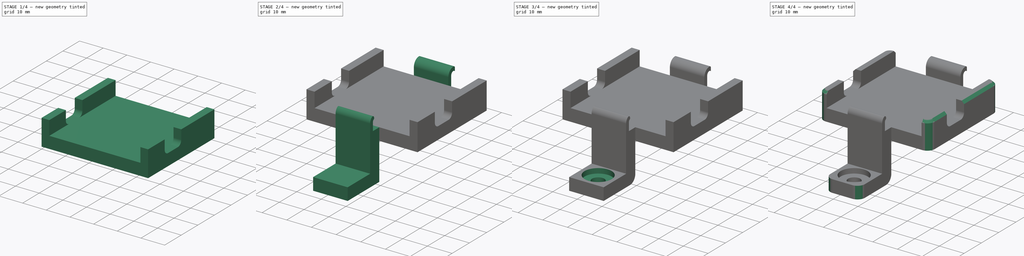
[diagram: build sequence overview — one tinted view per stage of 4, left to right]
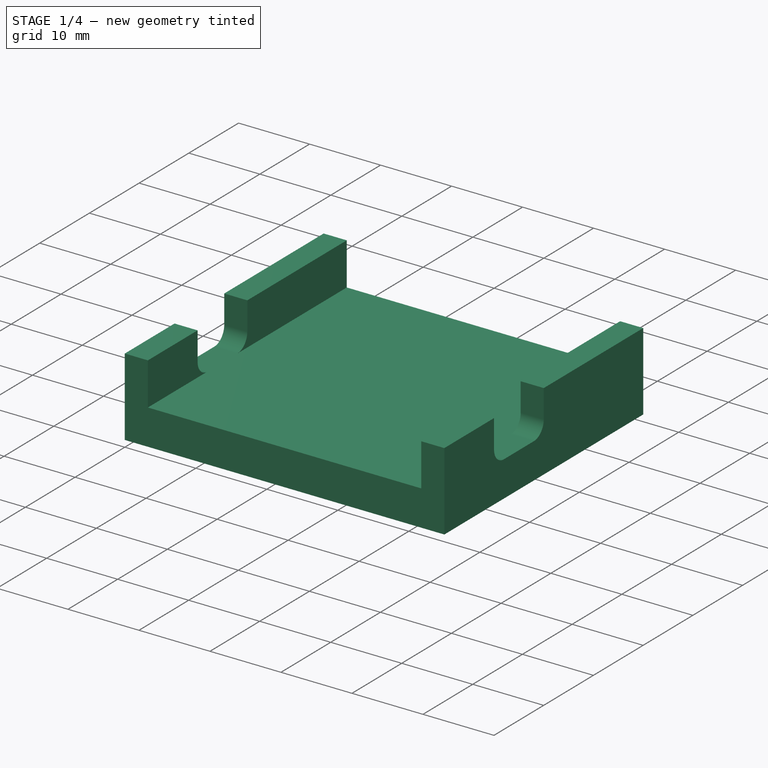
[diagram: stage 1 of 4 — iso view after this stage's code; geometry added in this stage tinted green]
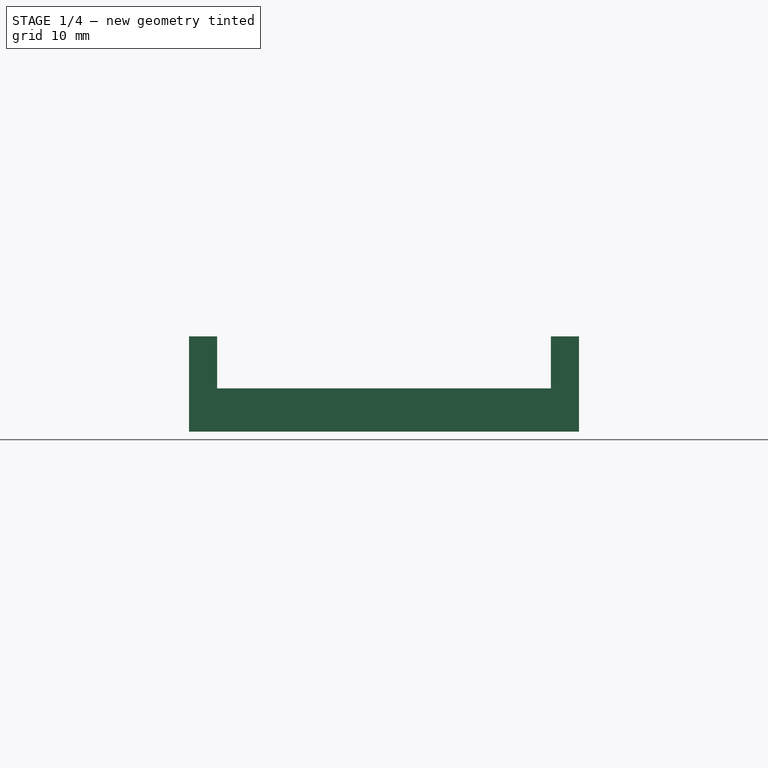
[diagram: stage 1 of 4 — front view after this stage's code; geometry added in this stage tinted green]
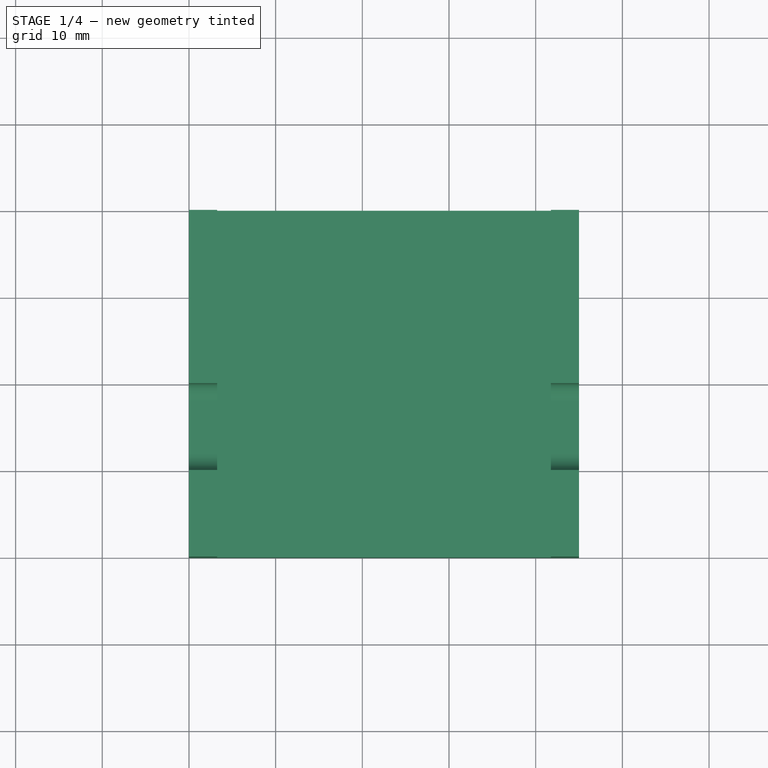
[diagram: stage 1 of 4 — top view after this stage's code; geometry added in this stage tinted green]
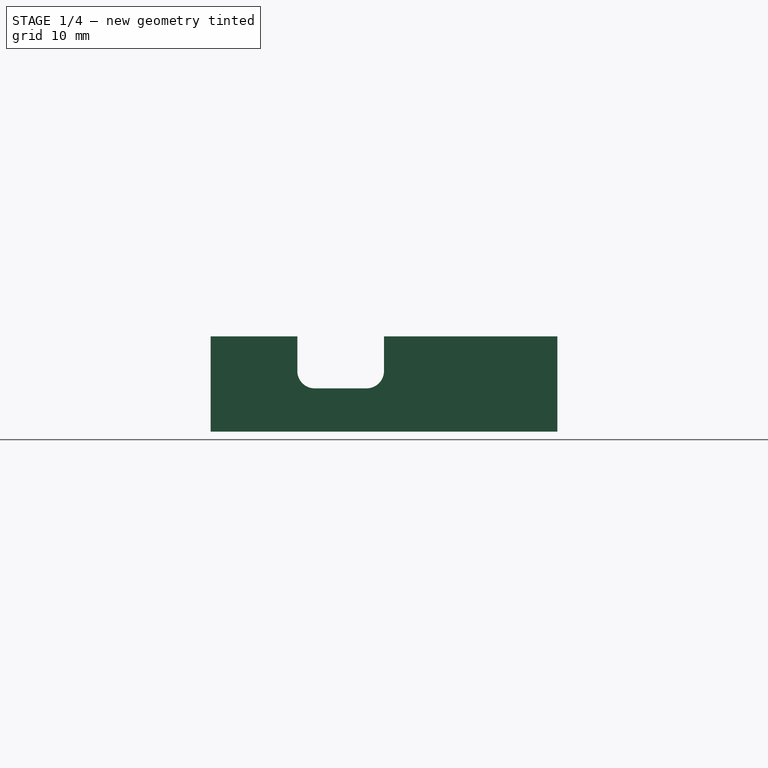
[diagram: stage 1 of 4 — right view after this stage's code; geometry added in this stage tinted green]
FCSTD DOCUMENT  (FreeCAD 0.21R33771 (Git))
Label: vivoactive-mount
License: All rights reserved
LicenseURL: http://en.wikipedia.org/wiki/All_rights_reserved
objects: Sketcher::SketchObject×7, PartDesign::Fillet×5, PartDesign::Pad×4, PartDesign::Pocket×3, App::MeasureDistance×3, Part::Feature×2, PartDesign::Chamfer×1, PartDesign::Body×1, Part::Fuse×1
note: 37 computed .brp shape members not serialized (recipe doc carries the construction recipe); baked Part::Feature solids carry a one-line shape summary decoded from their .brp

FEATURE [Sketcher::SketchObject] Sketch
  FullyConstrained = true
  MapMode = 5
  Support = -> [XY_Plane]
  sketch-geometry (4):
    g0: LineSegment StartX=0 StartY=0 StartZ=0 EndX=45 EndY=0 EndZ=0
    g1: LineSegment StartX=45 StartY=0 StartZ=0 EndX=45 EndY=40 EndZ=0
    g2: LineSegment StartX=45 StartY=40 StartZ=0 EndX=0 EndY=40 EndZ=0
    g3: LineSegment StartX=0 StartY=40 StartZ=0 EndX=0 EndY=0 EndZ=0
  constraints (11):
    c: Coincident(g0,g1)
    c: Coincident(g1,g2)
    c: Coincident(g2,g3)
    c: Coincident(g3,g0)
    c: Horizontal(g0)
    c: Horizontal(g2)
    c: Vertical(g1)
    c: Vertical(g3)
    c: Coincident(g0,g-1)
    c: Distance(g2) = 45
    c: Distance(g3) = 40  'base_height'
FEATURE [PartDesign::Pad] Pad
  Direction = (0,0,1)
  Length = 5
  Length2 = 100
  Profile = -> Sketch
  Refine = true
  Type = 0
FEATURE [Sketcher::SketchObject] Sketch001
  FullyConstrained = true
  MapMode = 5
  Placement = pos=(0,0,0) rot=(1,0,0;1.5708rad)
  Support = -> [XZ_Plane]
  expr: Constraints[6] = Pad.Length + 6 mm
  sketch-geometry (8):
    g0: LineSegment StartX=0 StartY=0 StartZ=0 EndX=0 EndY=11 EndZ=0
    g1: LineSegment StartX=3.25 StartY=11 StartZ=0 EndX=3.25 EndY=0 EndZ=0
    g2: LineSegment StartX=3.25 StartY=0 StartZ=0 EndX=0 EndY=0 EndZ=0
    g3: LineSegment StartX=41.75 StartY=11 StartZ=0 EndX=45 EndY=11 EndZ=0
    g4: LineSegment StartX=45 StartY=11 StartZ=0 EndX=45 EndY=0 EndZ=0
    g5: LineSegment StartX=45 StartY=0 StartZ=0 EndX=41.75 EndY=0 EndZ=0
    g6: LineSegment StartX=41.75 StartY=0 StartZ=0 EndX=41.75 EndY=11 EndZ=0
    g7: LineSegment StartX=0 StartY=11 StartZ=0 EndX=3.25 EndY=11 EndZ=0
  constraints (23):
    c: Coincident(g-1,g0)
    c: PointOnObject(g0,g-2)
    c: Vertical(g1)
    c: Coincident(g1,g2)
    c: Coincident(g2,g0)
    c: PointOnObject(g1,g-1)
    c: Distance(g1) = 11
    c: Distance(g2) = 3.25
    c: Coincident(g3,g4)
    c: Coincident(g4,g5)
    c: Coincident(g5,g6)
    c: Coincident(g6,g3)
    c: Horizontal(g3)
    c: Horizontal(g5)
    c: Vertical(g4)
    c: Vertical(g6)
    c: PointOnObject(g4,g-1)
    c: Equal(g2,g5)
    c: Equal(g6,g0)
    c: Distance(g5,g1) = 38.5
    c: Coincident(g7,g0)
    c: Coincident(g7,g1)
    c: Horizontal(g7)
FEATURE [PartDesign::Pad] Pad001
  BaseFeature = -> Pad
  Direction = (0,-1,-2e-16)
  Length = 40
  Length2 = 100
  Profile = -> Sketch001
  Refine = true
  Reversed = true
  Type = 0
FEATURE [Sketcher::SketchObject] Sketch002
  FullyConstrained = true
  MapMode = 5
  Placement = pos=(0,0,0) rot=(0.57735,0.57735,0.57735;2.0944rad)
  Support = -> [YZ_Plane]
  sketch-geometry (4):
    g0: LineSegment StartX=10 StartY=5 StartZ=0 EndX=20 EndY=5 EndZ=0
    g1: LineSegment StartX=20 StartY=5 StartZ=0 EndX=20 EndY=11 EndZ=0
    g2: LineSegment StartX=20 StartY=11 StartZ=0 EndX=10 EndY=11 EndZ=0
    g3: LineSegment StartX=10 StartY=11 StartZ=0 EndX=10 EndY=5 EndZ=0
  constraints (12):
    c: Coincident(g0,g1)
    c: Coincident(g1,g2)
    c: Coincident(g2,g3)
    c: Coincident(g3,g0)
    c: Horizontal(g0)
    c: Horizontal(g2)
    c: Vertical(g1)
    c: Vertical(g3)
    c: DistanceX(g0) = 10
    c: Distance(g0) = 10
    c: DistanceY(g-1,g0) = 5
    c: Distance(g1) = 6
FEATURE [PartDesign::Pocket] Pocket
  BaseFeature = -> Pad001
  Direction = (-1,2e-16,-3e-16)
  Length = 5
  Length2 = 100
  Profile = -> Sketch002
  ReferenceAxis = -> Sketch002 [N_Axis]
  Refine = true
  Reversed = true
  Type = 1
FEATURE [PartDesign::Fillet] Fillet
  Base = -> Pocket [Edge41,Edge44,Edge32,Edge33]
  BaseFeature = -> Pocket
  Radius = 2
  Refine = true
  SupportTransform = false
  UseAllEdges = false
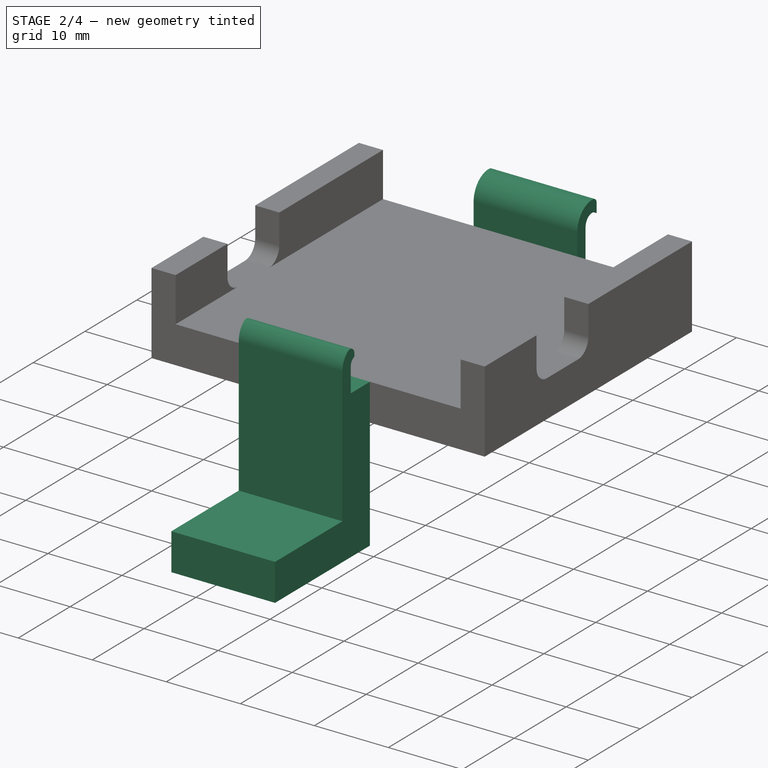
[diagram: stage 2 of 4 — iso view after this stage's code; geometry added in this stage tinted green]
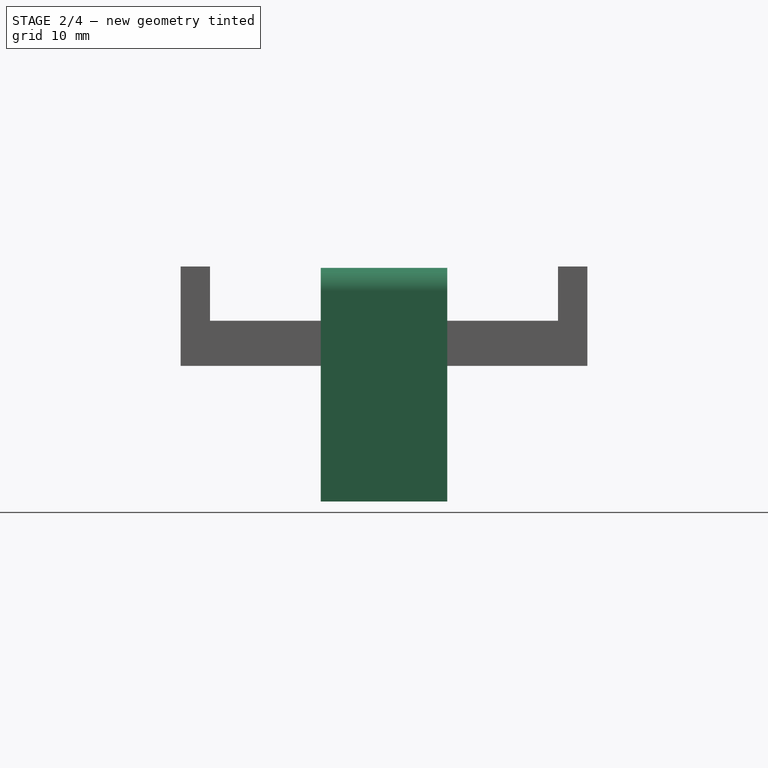
[diagram: stage 2 of 4 — front view after this stage's code; geometry added in this stage tinted green]
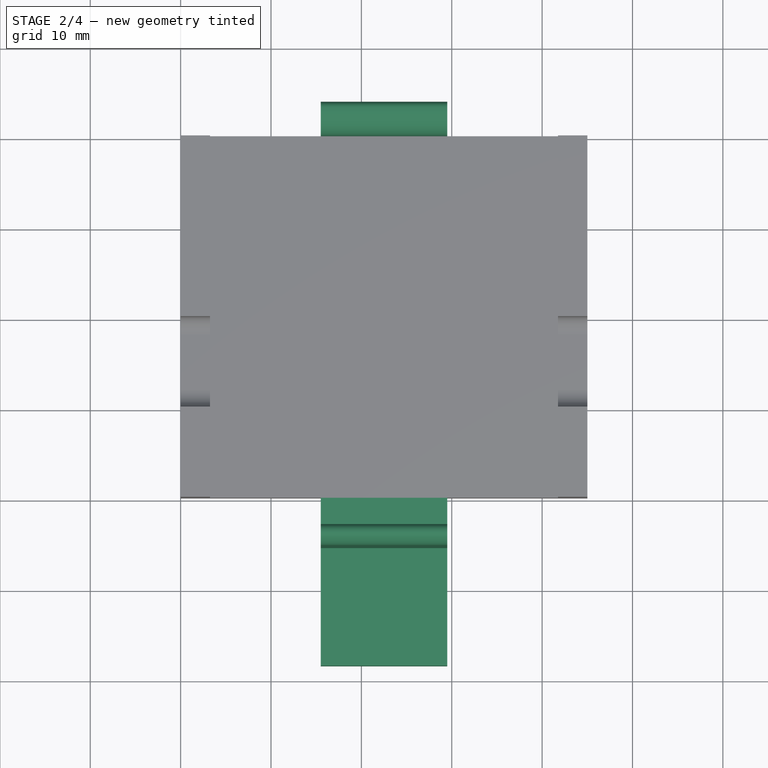
[diagram: stage 2 of 4 — top view after this stage's code; geometry added in this stage tinted green]
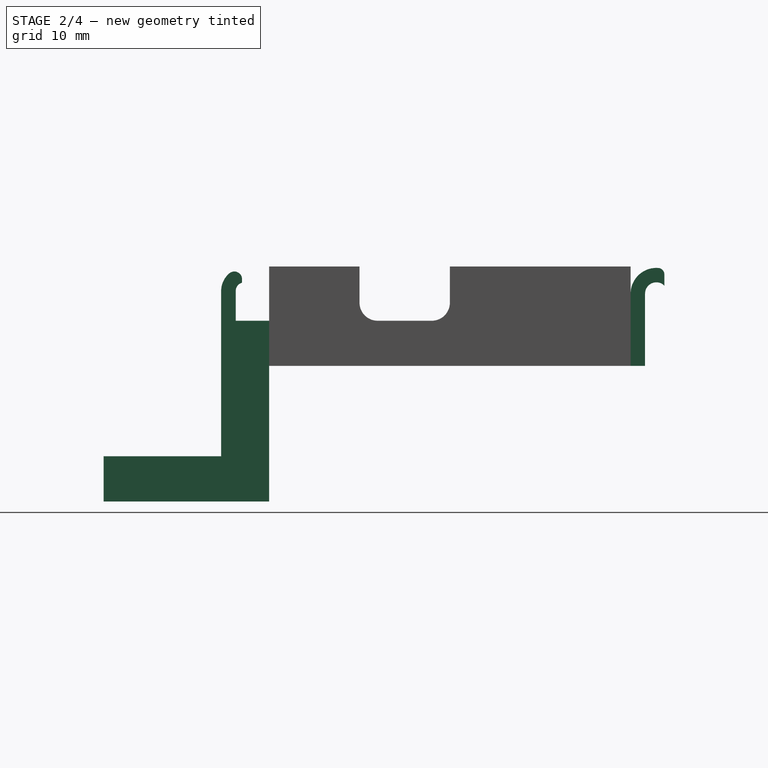
[diagram: stage 2 of 4 — right view after this stage's code; geometry added in this stage tinted green]
FEATURE [Sketcher::SketchObject] Sketch003
  AttachmentOffset = pos=(0,0,15.5) rot=(0,0,1;0rad)
  FullyConstrained = true
  MapMode = 5
  Placement = pos=(15.5,-3.4e-15,3.4e-15) rot=(0.57735,0.57735,0.57735;2.0944rad)
  Support = -> [YZ_Plane]
  sketch-geometry (7):
    g0: LineSegment StartX=40 StartY=0 StartZ=0 EndX=41.5961 EndY=0 EndZ=0
    g1: LineSegment StartX=41.5961 StartY=0 StartZ=0 EndX=41.5961 EndY=8 EndZ=0
    g2: ArcOfCircle CenterX=42.8461 CenterY=8 CenterZ=0 NormalX=0 NormalY=0 NormalZ=1 AngleXU=0 Radius=1.25 StartAngle=0.785398 EndAngle=3.14159
    g3: LineSegment StartX=40 StartY=8 StartZ=0 EndX=40 EndY=0 EndZ=0
    g4: ArcOfCircle CenterX=42.8461 CenterY=8 CenterZ=0 NormalX=0 NormalY=0 NormalZ=1 AngleXU=0 Radius=2.84612 StartAngle=1.48501 EndAngle=3.14159
    g5: LineSegment StartX=43.73 StartY=10.1382 StartZ=0 EndX=43.73 EndY=8.88388 EndZ=0
    g6: ArcOfCircle CenterX=43.03 CenterY=10.1382 CenterZ=0 NormalX=0 NormalY=0 NormalZ=1 AngleXU=0 Radius=0.7 StartAngle=0 EndAngle=1.48501
  constraints (19):
    c: Coincident(g0,g1)
    c: Vertical(g1)
    c: Tangent(g1,g2) = 1.5708
    c: Vertical(g3)
    c: Radius(g2) = 1.25
    c: Tangent(g3,g4) = -1.5708
    c: Coincident(g5,g2)
    c: Vertical(g5)
    c: Coincident(g4,g2)
    c: Tangent(g4,g6) = -1.5708
    c: Tangent(g5,g6) = 1.5708
    c: Radius(g6) = 0.7
    c: Angle(g2) = 2.35619
    c: PointOnObject(g0,g-1)
    c: Horizontal(g0)
    c: Coincident(g3,g0)
    c: DistanceX(g-1,g0) = 40
    c: DistanceX(g-1,g6) = 43.03
    c: Distance(g1) = 8
FEATURE [PartDesign::Pad] Pad002
  BaseFeature = -> Fillet
  Direction = (1,-2e-16,3e-16)
  Length = 14
  Length2 = 100
  Profile = -> Sketch003
  ReferenceAxis = -> Sketch003 [N_Axis]
  Refine = true
  Type = 0
FEATURE [PartDesign::Fillet] Fillet001
  Base = -> Pad002
  BaseFeature = -> Pad002
  Radius = 3
  Refine = true
  SupportTransform = false
  UseAllEdges = false
FEATURE [Sketcher::SketchObject] Sketch004
  AttachmentOffset = pos=(0,0,15.5) rot=(0,0,1;0rad)
  FullyConstrained = true
  MapMode = 5
  Placement = pos=(15.5,-3.4e-15,3.4e-15) rot=(0.57735,0.57735,0.57735;2.0944rad)
  Support = -> [YZ_Plane]
  sketch-geometry (12):
    g0: LineSegment StartX=-18.31 StartY=-15 StartZ=0 EndX=-18.31 EndY=-10 EndZ=0
    g1: LineSegment StartX=-18.31 StartY=-10 StartZ=0 EndX=-5.31 EndY=-10 EndZ=0
    g2: LineSegment StartX=-5.31 StartY=-10 StartZ=0 EndX=-5.31 EndY=8.29 EndZ=0
    g3: ArcOfCircle CenterX=-2.75 CenterY=8.29 CenterZ=0 NormalX=0 NormalY=0 NormalZ=1 AngleXU=0 Radius=2.56 StartAngle=2.26956 EndAngle=3.14159
    g4: ArcOfCircle CenterX=-2.75 CenterY=8.29 CenterZ=0 NormalX=0 NormalY=0 NormalZ=1 AngleXU=0 Radius=0.95 StartAngle=1.83709 EndAngle=3.14159
    g5: LineSegment StartX=-3.7 StartY=8.29 StartZ=0 EndX=-3.7 EndY=5 EndZ=0
    g6: LineSegment StartX=-3.7 StartY=5 StartZ=0 EndX=0 EndY=5 EndZ=0
    g7: LineSegment StartX=0 StartY=5 StartZ=0 EndX=0 EndY=0 EndZ=0
    g8: LineSegment StartX=-18.31 StartY=-15 StartZ=0 EndX=0 EndY=-15 EndZ=0
    g9: LineSegment StartX=0 StartY=-15 StartZ=0 EndX=0 EndY=0 EndZ=0
    g10: ArcOfCircle CenterX=-3.85 CenterY=9.59924 CenterZ=0 NormalX=0 NormalY=0 NormalZ=1 AngleXU=0 Radius=0.85 StartAngle=8e-16 EndAngle=2.26956
    g11: LineSegment StartX=-3 StartY=9.59924 StartZ=0 EndX=-3 EndY=9.20652 EndZ=0
  constraints (34):
    c: Vertical(g0)
    c: Coincident(g0,g1)
    c: Horizontal(g1)
    c: Coincident(g1,g2)
    c: Vertical(g2)
    c: Tangent(g2,g3) = 1.5708
    c: Tangent(g4,g5) = -1.5708
    c: Coincident(g5,g6)
    c: PointOnObject(g6,g-2)
    c: Horizontal(g6)
    c: Coincident(g6,g7)
    c: Vertical(g5)
    c: Distance(g6) = 3.7
    c: Distance(g7) = 5
    c: Radius(g4) = 0.95
    c: Distance(g1) = 13
    c: DistanceY(g3) = 8.29
    c: Coincident(g0,g8)
    c: PointOnObject(g8,g-2)
    c: Horizontal(g8)
    c: Coincident(g8,g9)
    c: Coincident(g9,g7)
    c: Vertical(g9)
    c: DistanceY(g8) = -15
    c: Distance(g0) = 5
    c: Distance(g5,g2) = 1.61
    c: Coincident(g4,g3)
    c: PointOnObject(g7,g-1)
    c: Tangent(g3,g10) = -1.5708
    c: Tangent(g10,g11) = 1.5708
    c: Coincident(g11,g4)
    c: Vertical(g11)
    c: DistanceX(g4) = -3
    c: Radius(g10) = 0.85
FEATURE [PartDesign::Pad] Pad003
  BaseFeature = -> Fillet001
  Direction = (1,-2e-16,3e-16)
  Length = 14
  Length2 = 10
  Profile = -> Sketch004
  ReferenceAxis = -> Sketch004 [N_Axis]
  Type = 0
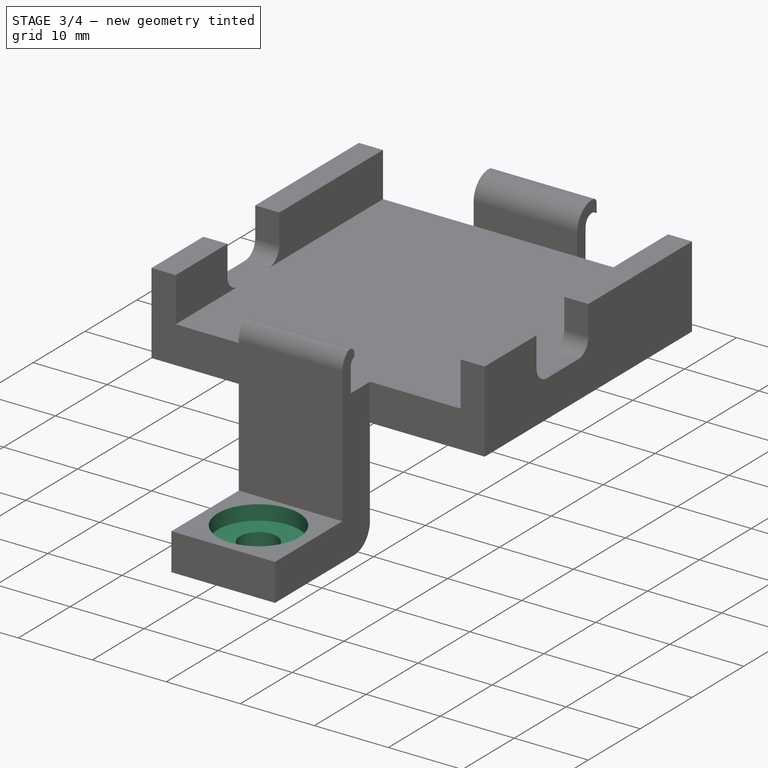
[diagram: stage 3 of 4 — iso view after this stage's code; geometry added in this stage tinted green]
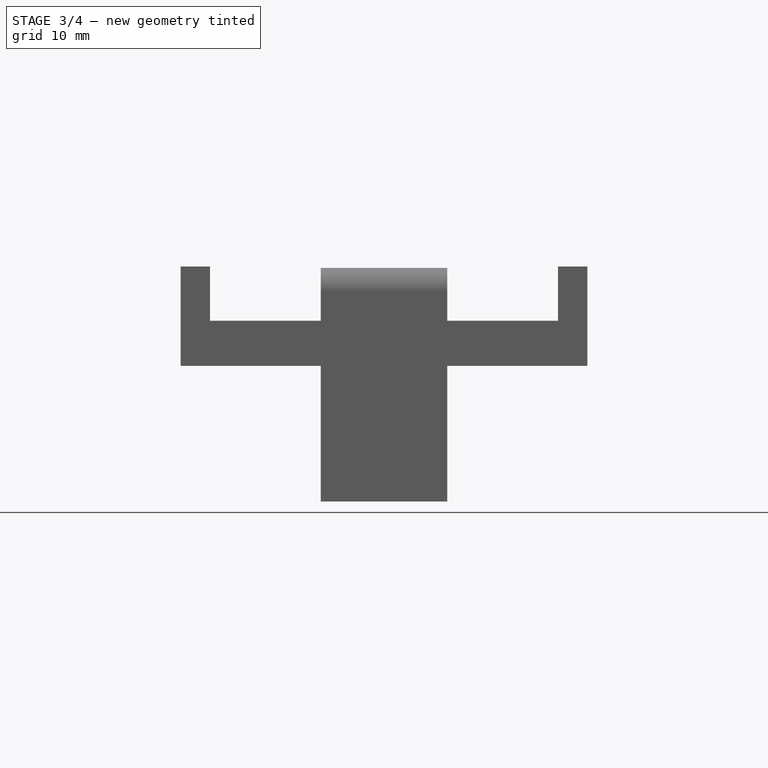
[diagram: stage 3 of 4 — front view after this stage's code; geometry added in this stage tinted green]
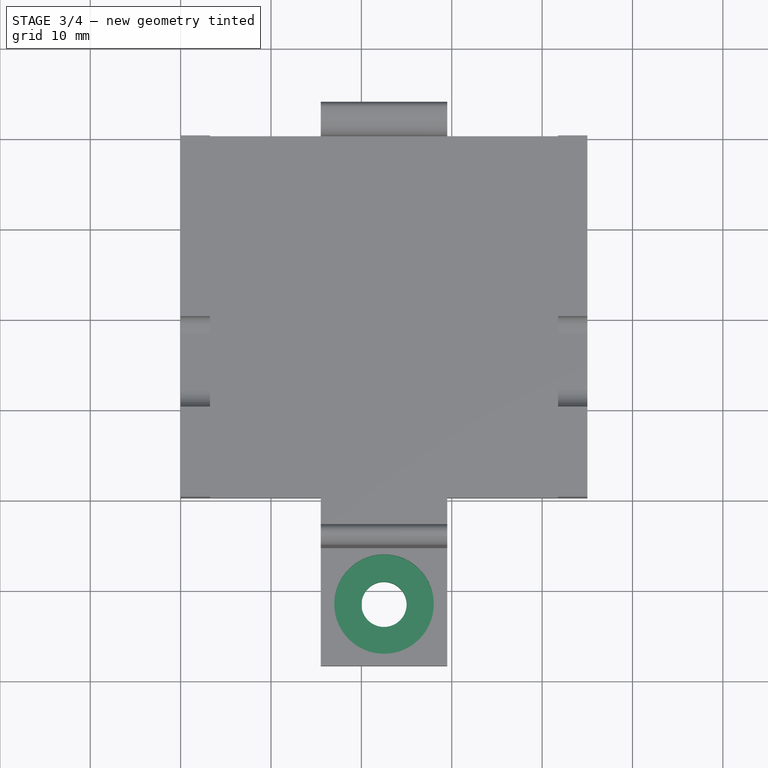
[diagram: stage 3 of 4 — top view after this stage's code; geometry added in this stage tinted green]
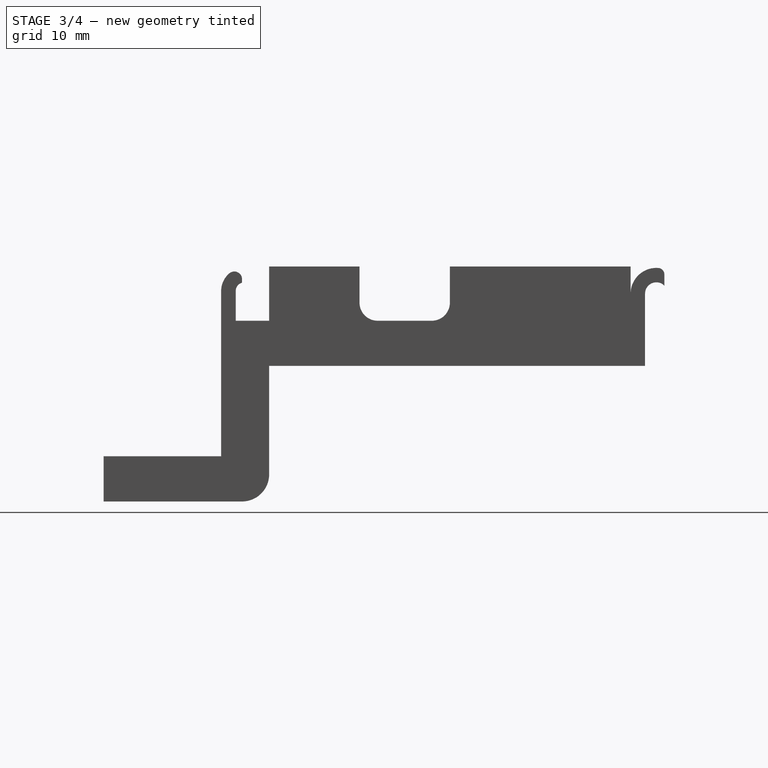
[diagram: stage 3 of 4 — right view after this stage's code; geometry added in this stage tinted green]
FEATURE [PartDesign::Fillet] Fillet002
  Base = -> Pad003 [Edge93]
  BaseFeature = -> Pad003
  Radius = 3
  SupportTransform = false
  UseAllEdges = false
FEATURE [Sketcher::SketchObject] Sketch005
  AttachmentOffset = pos=(0,0,-10) rot=(0,0,1;0rad)
  FullyConstrained = true
  MapMode = 5
  Placement = pos=(0,0,-10) rot=(0,0,1;0rad)
  Support = -> [XY_Plane]
  sketch-geometry (1):
    g0: Circle CenterX=22.5 CenterY=-11.5 CenterZ=0 NormalX=0 NormalY=0 NormalZ=1 AngleXU=0 Radius=5.5
  constraints (3):
    c: Radius(g0) = 5.5
    c: DistanceY(g0) = -11.5
    c: DistanceX(g0) = 22.5
FEATURE [Sketcher::SketchObject] Sketch006
  AttachmentOffset = pos=(0,0,-10) rot=(0,0,1;0rad)
  ExternalGeometry = -> [Sketch005]
  FullyConstrained = true
  MapMode = 5
  Placement = pos=(0,0,-10) rot=(0,0,1;0rad)
  Support = -> [XY_Plane]
  sketch-geometry (1):
    g0: Circle CenterX=22.5 CenterY=-11.5 CenterZ=0 NormalX=0 NormalY=0 NormalZ=1 AngleXU=0 Radius=2.5
  constraints (2):
    c: Coincident(g-3,g0)
    c: Radius(g0) = 2.5
FEATURE [PartDesign::Pocket] Pocket001
  BaseFeature = -> Fillet002
  Direction = (0,0,-1)
  Length = 2
  Length2 = 5
  Profile = -> Sketch005
  ReferenceAxis = -> Sketch005 [N_Axis]
  Type = 0
FEATURE [PartDesign::Pocket] Pocket002
  BaseFeature = -> Pocket001
  Direction = (0,0,-1)
  Length = 5
  Length2 = 5
  Profile = -> Sketch006
  ReferenceAxis = -> Sketch006 [N_Axis]
  Type = 0
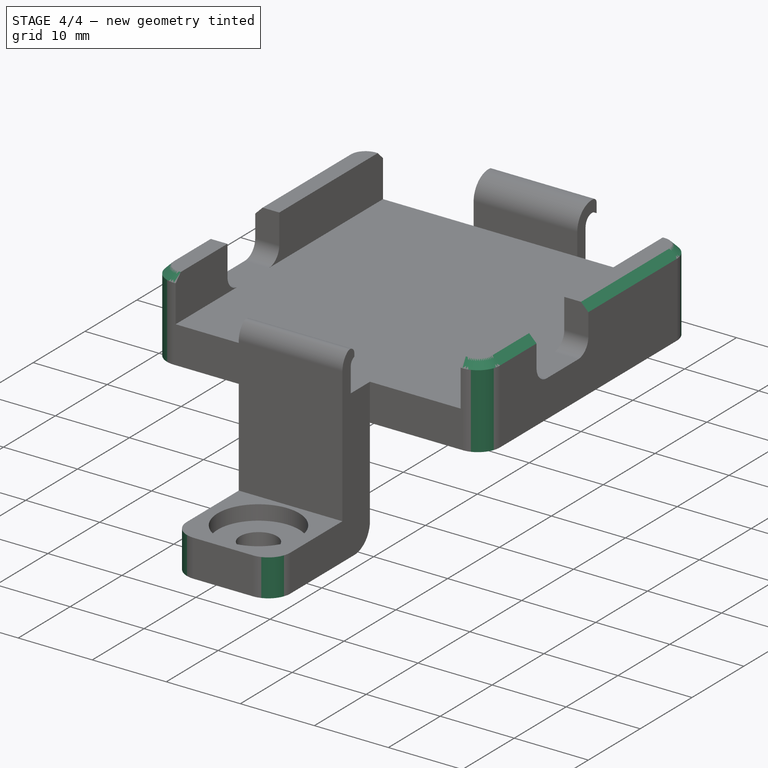
[diagram: stage 4 of 4 — iso view after this stage's code; geometry added in this stage tinted green]
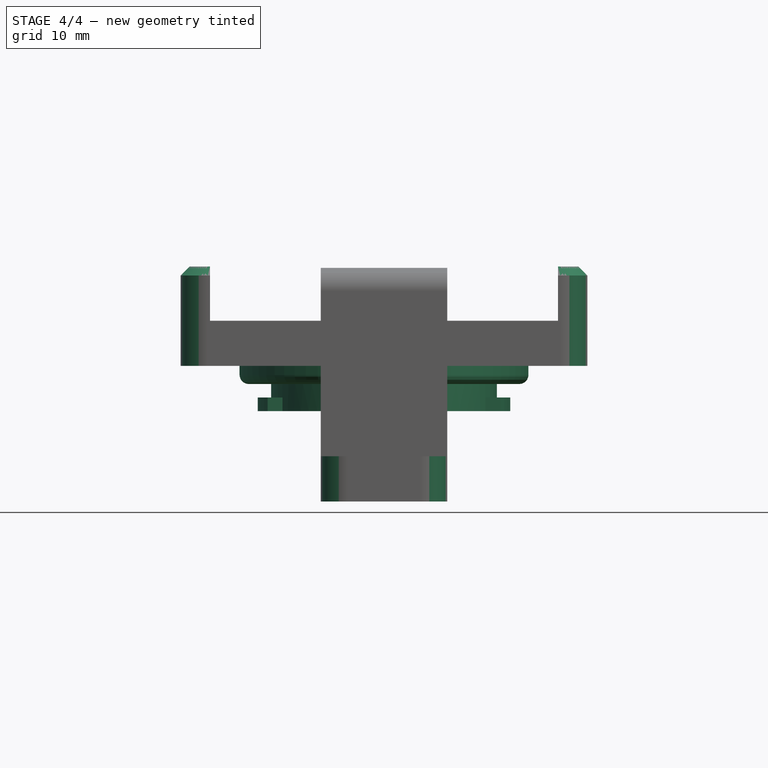
[diagram: stage 4 of 4 — front view after this stage's code; geometry added in this stage tinted green]
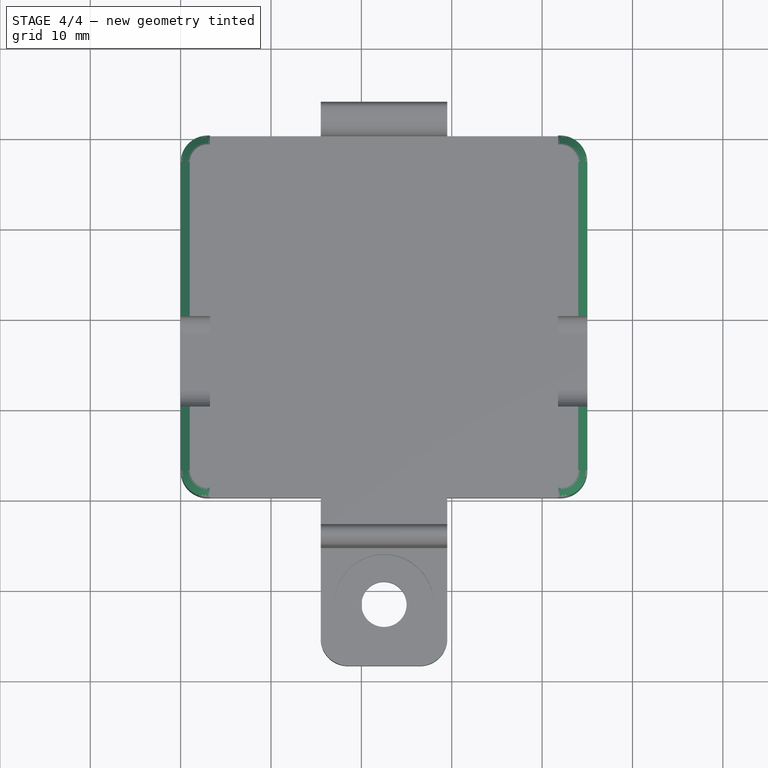
[diagram: stage 4 of 4 — top view after this stage's code; geometry added in this stage tinted green]
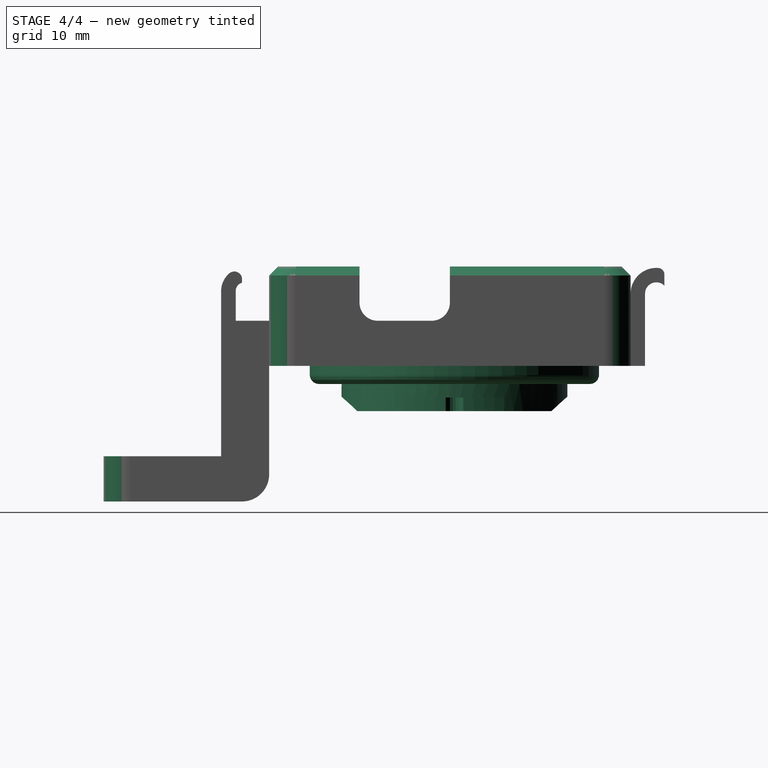
[diagram: stage 4 of 4 — right view after this stage's code; geometry added in this stage tinted green]
FEATURE [PartDesign::Fillet] Fillet003
  Base = -> Pocket002 [Edge44,Edge91,Edge61,Edge81]
  BaseFeature = -> Pocket002
  Radius = 3
  SupportTransform = false
  UseAllEdges = false
FEATURE [PartDesign::Chamfer] Chamfer
  Angle = 45
  Base = -> Fillet003 [Edge21,Edge15,Edge64,Edge69]
  BaseFeature = -> Fillet003
  ChamferType = 0
  FlipDirection = false
  Size = 1
  Size2 = 1
  SupportTransform = false
  UseAllEdges = false
FEATURE [PartDesign::Fillet] Fillet004
  Base = -> Chamfer [Edge123,Edge137]
  BaseFeature = -> Chamfer
  Radius = 3
  SupportTransform = false
  UseAllEdges = false
FEATURE [PartDesign::Body] Body
  Group = -> [Sketch,Pad,Sketch001,Pad001,Sketch002,Pocket,Fillet,Sketch003,Pad002,Fillet001,Sketch004,Pad003,Fillet002,Sketch005,Sketch006,Pocket001,Pocket002,Fillet003,Chamfer,Fillet004]
  Origin = -> Origin
  Tip = -> Fillet004
FEATURE [App::MeasureDistance] Distance  label="Distance: 45.01 mm"
  Distance = 45.0076
  P1 = (45,26.9456,0)
  P2 = (0,27.7716,0)
FEATURE [Part::Feature] garmin_turn_plate_Quarter_turn_v6002
  shape: bbox 31.96 x 32 x 6 mm, 1546 faces, 0 solids (baked)
FEATURE [Part::Feature] garmin_turn_plate_Quarter_turn_v6002_solid  label="garmin_turn_plate_Quarter_turn_v6002 (Solid)"
  shape: bbox 31.96 x 32 x 6 mm, 1546 faces (baked)
FEATURE [Part::Fuse] Fusion
  Base = -> Body
  Tool = -> garmin_turn_plate_Quarter_turn_v6002_solid
FEATURE [App::MeasureDistance] Distance001  label="Distance: 24.81 mm"
  Distance = 24.8111
  P1 = (22.3734,32.8163,-3.43764)
  P2 = (22.3434,8.0053,-3.40325)
FEATURE [App::MeasureDistance] Distance002  label="Distance: 27.94 mm"
  Distance = 27.9438
  P1 = (35.3192,26,-5)
  P2 = (9.5778,15.1262,-5)
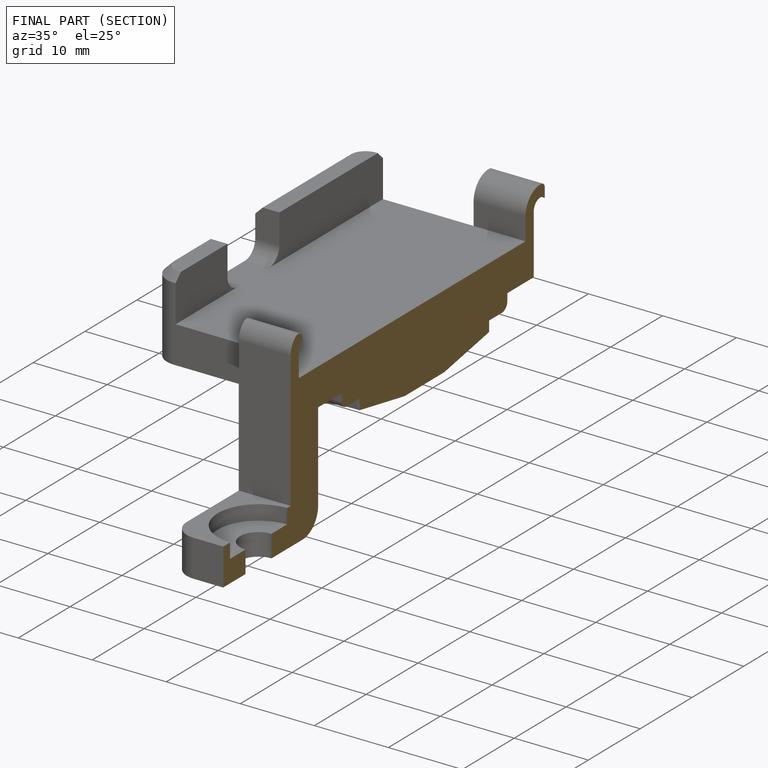
[diagram: finished part — half-section view (interior)]
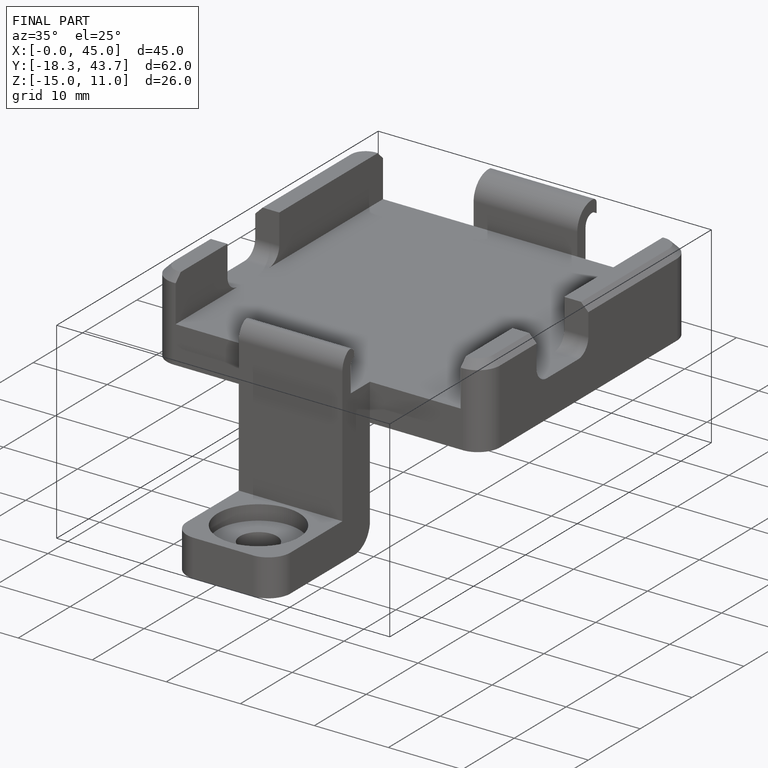
[diagram: finished part — iso view with bounding-box wireframe]
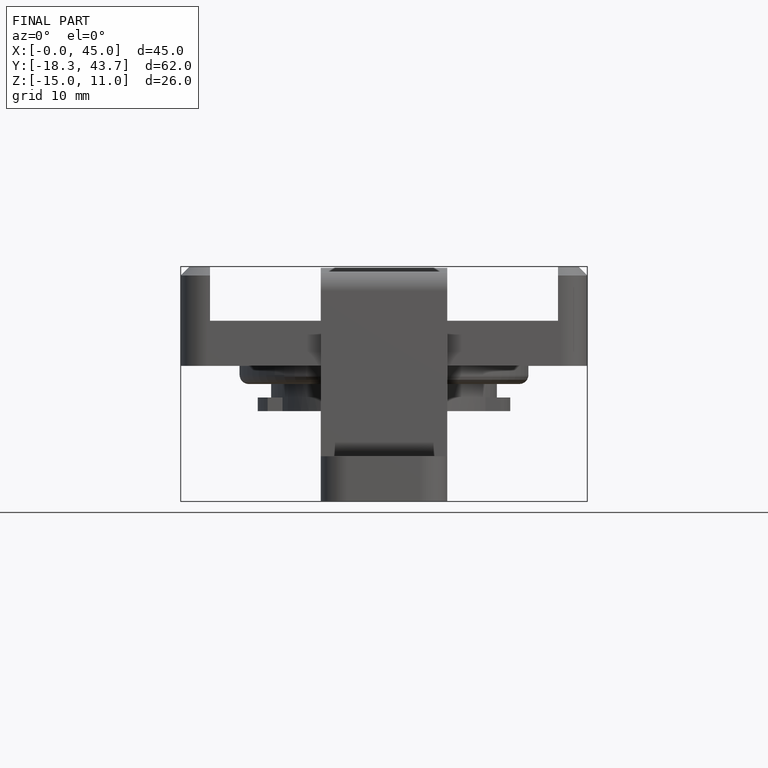
[diagram: finished part — front view with bounding-box wireframe]
